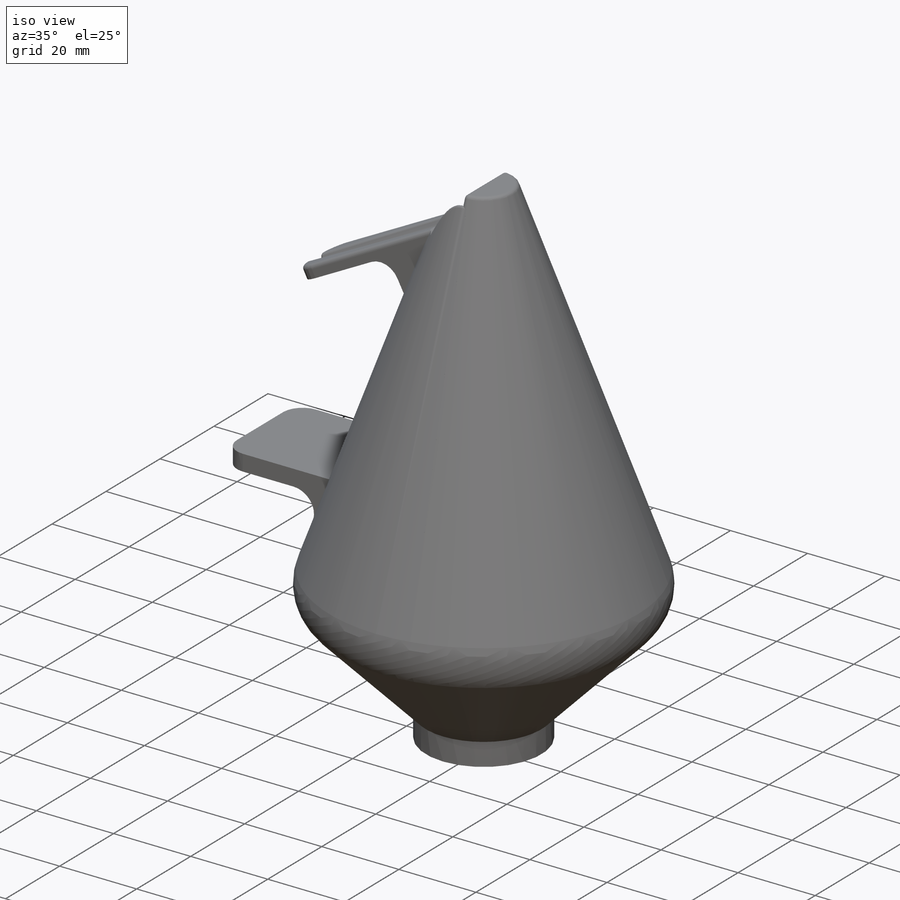
[diagram: iso view]
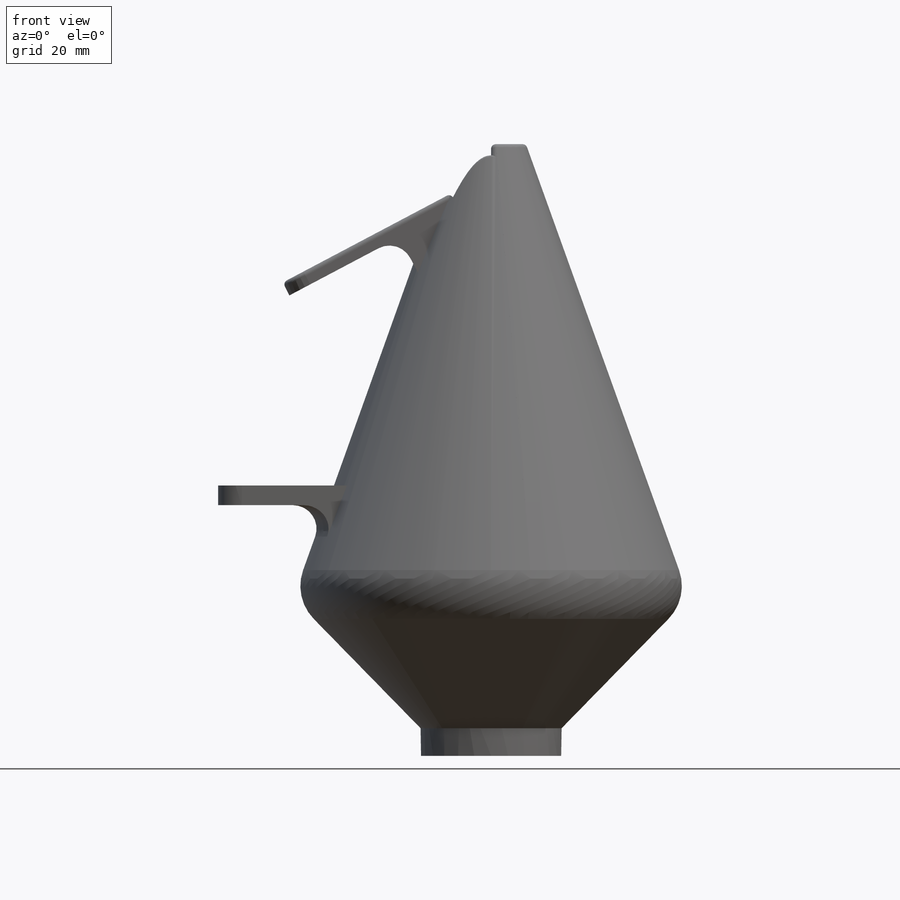
[diagram: front view]
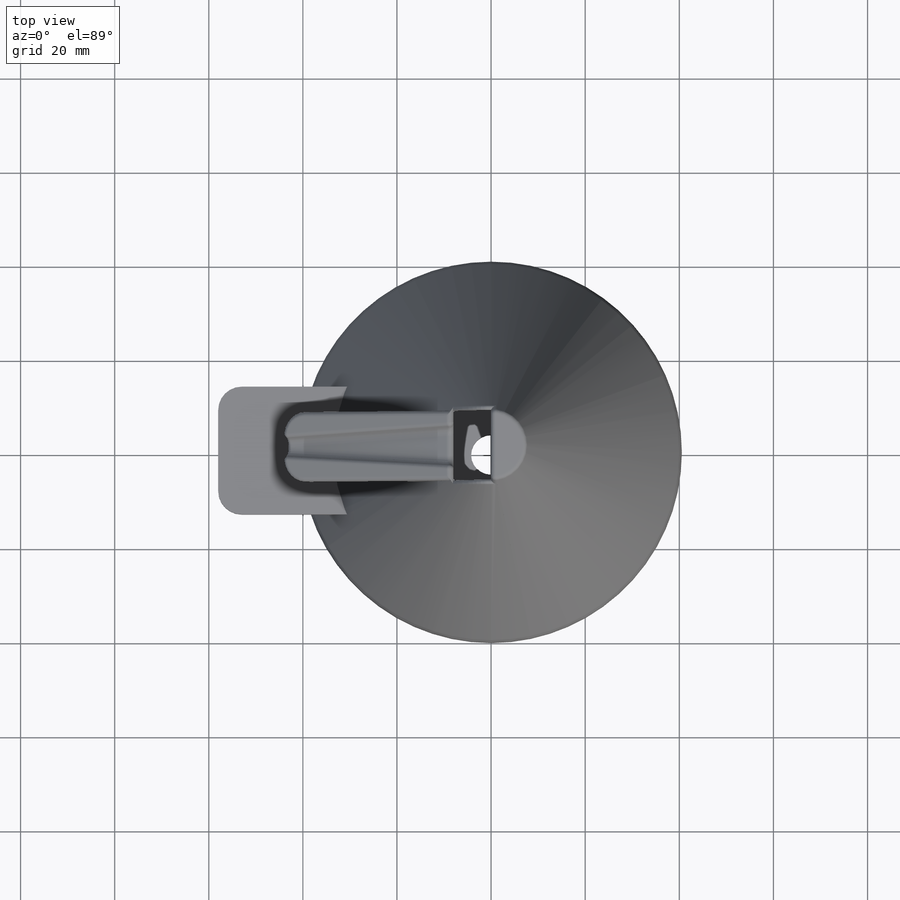
[diagram: top view]
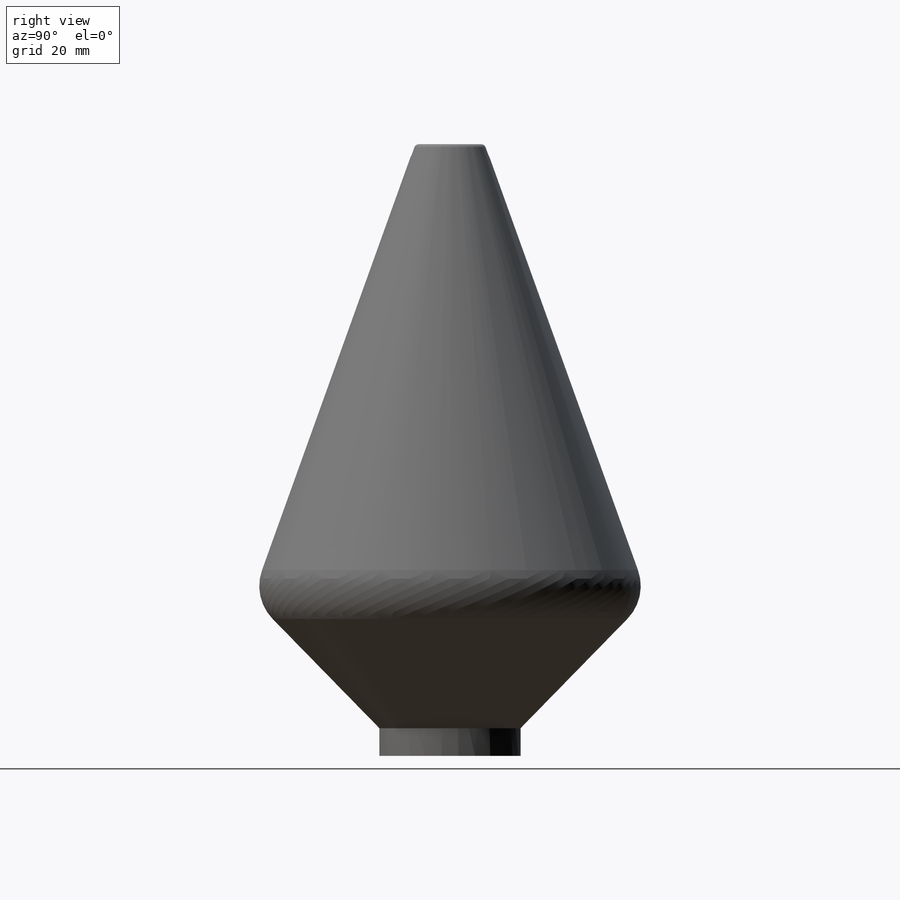
[diagram: right view]
SOLIDWORKS PART (.sldprt)
format: sldprt  version: not decoded by parser v0  size: 458,752 bytes
history: native  units: mm
features: fillet x9, sketch x7, plane x5, cut_extrude x3, extrude x3, material x1, revolve x1 (+8 scaffold rows collapsed)
feature tree (37):
  scaffold x8  (default folders/planes/origin — collapsed)
  material  "Material <não especificado>"
  plane  "Plano frontal"
  plane  "Plano superior"
  plane  "Plano direito"
  sketch  "Esboço1"  dims[c1.D3=10.0mm c1.D1=130.0mm c1.D2=15.0mm c1.D4=~28.711361mm c1.D6=6.0mm c2.D4=2.0mm c2.D5=2.0mm]
  revolve  "Revolução3"  Angle=360deg
  sketch  "Esboço6"  dims[D1=8.5mm]
  cut_extrude  "Corte-extrusão2"  [1 undecoded]
  plane  "Plano2"  Offset=130mm
  sketch  "Esboço8"
  cut_extrude  "Corte-extrusão4"  Depth=15mm
  sketch  "Esboço9"
  extrude  "Ressalto-extrusão9"  [1 undecoded]
  sketch  "Esboço17"  dims[D1=3.0mm]
  cut_extrude  "Corte-extrusão7"  Depth=2mm
  fillet  "Filete2"  Radius=5mm
  fillet  "Filete3"  Radius=2mm
  sketch  "Esboço18"  dims[D1=0.0mm]
  extrude  "Ressalto-extrusão10"  [1 undecoded]
  fillet  "Filete4"  Radius=5mm
  fillet  "Filete5"  Radius=1mm
  plane  "Plano3"  Offset=58mm
  sketch  "Esboço19"
  extrude  "Ressalto-extrusão11"  [1 undecoded]
  fillet  "Filete6"  Radius=5mm
  fillet  "Filete7"  Radius=5mm
  fillet  "Filete9"  Radius=0.5mm
  fillet  "Filete10"  Radius=1mm
  fillet  "Filete11"  Radius=1mm
decode coverage: 16 of 23 modeling features carry decoded parameters
note: ~ marks probable driven/reference dimensions
note: 4 parameter values undecoded
summary: no parameter record found for 4 features
note: suppression state not decoded; provenance and decode notes live in map.json
